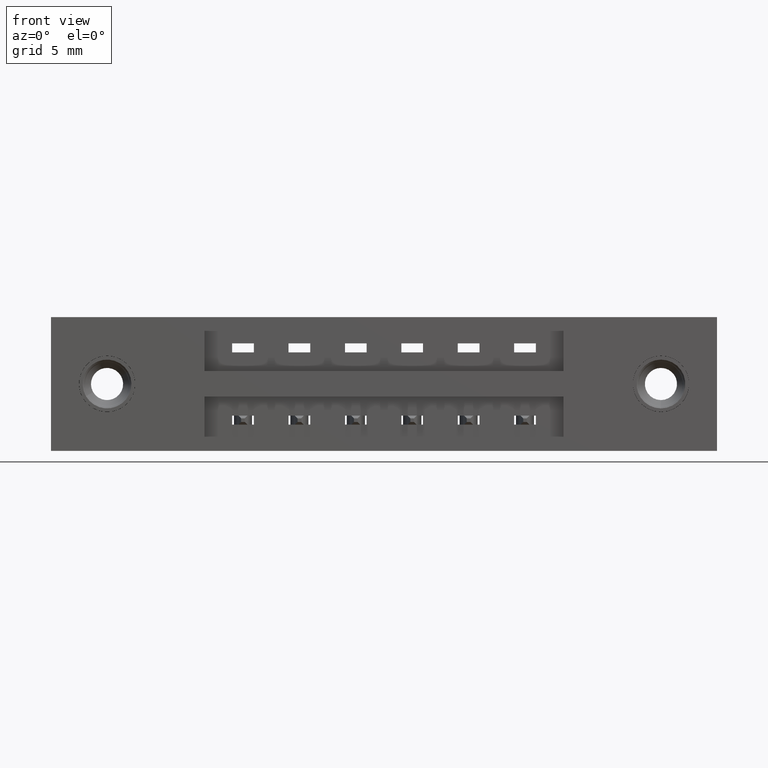
[diagram: clean part render]
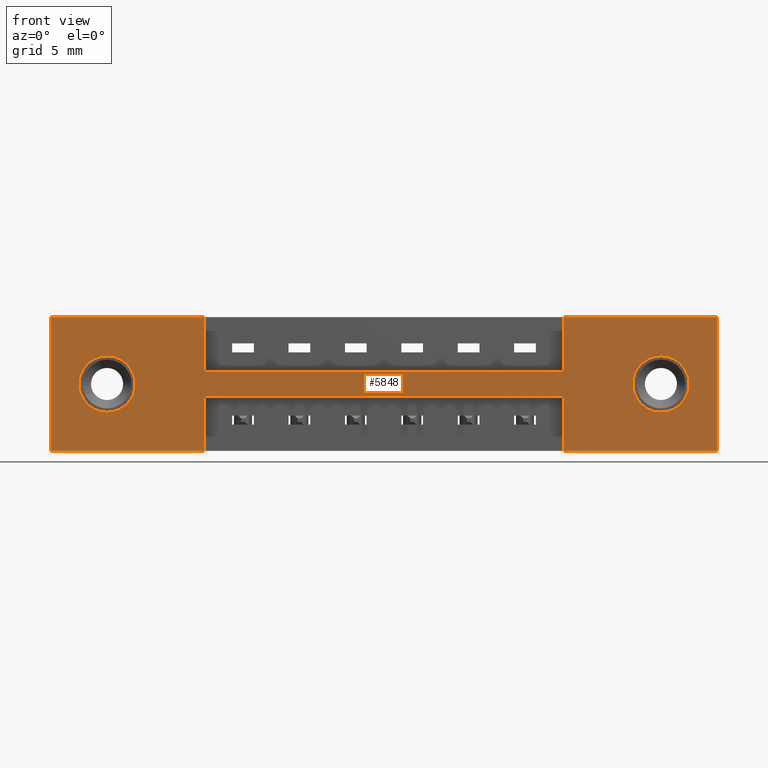
[diagram: same view with one face highlighted and labeled with its STEP entity id]
A machine part, front view. The second image highlights one B-rep face of the part: STEP entity #5848.
In plain terms, the highlighted planar face has unit normal (0, -1, 0).
Its self-contained STEP definition (entity closure, byte-faithful):
#3 = DIRECTION ( 'NONE',  ( 0.0000000000000000000, 1.000000000000000000, 0.0000000000000000000 ) ) ;
#87 = CARTESIAN_POINT ( 'NONE',  ( 1.687000000000000900, 0.0000000000000000000, -0.1850000000000000000 ) ) ;
#170 = EDGE_CURVE ( 'NONE', #6226, #3230, #2421, .T. ) ;
#321 = LINE ( 'NONE', #6213, #5037 ) ;
#338 = CARTESIAN_POINT ( 'NONE',  ( 0.1550000000000001100, 0.0000000000000000000, -0.1070000000000000100 ) ) ;
#394 = VECTOR ( 'NONE', #1293, 39.37007874015748100 ) ;
#461 = CARTESIAN_POINT ( 'NONE',  ( 1.687000000000000900, 0.0000000000000000000, -0.2630000000000001200 ) ) ;
#590 = ORIENTED_EDGE ( 'NONE', *, *, #8670, .F. ) ;
#700 = VERTEX_POINT ( 'NONE', #461 ) ;
#764 = CARTESIAN_POINT ( 'NONE',  ( 1.687000000000000900, 0.0000000000000000000, -0.1069999999999999300 ) ) ;
#988 = EDGE_LOOP ( 'NONE', ( #4795, #8601 ) ) ;
#1044 = VERTEX_POINT ( 'NONE', #1182 ) ;
#1182 = CARTESIAN_POINT ( 'NONE',  ( 0.1550000000000001100, 0.0000000000000000000, -0.2630000000000000100 ) ) ;
#1214 = VERTEX_POINT ( 'NONE', #764 ) ;
#1252 = ORIENTED_EDGE ( 'NONE', *, *, #5681, .F. ) ;
#1293 = DIRECTION ( 'NONE',  ( 0.0000000000000000000, 0.0000000000000000000, -1.000000000000000000 ) ) ;
#1341 = LINE ( 'NONE', #3321, #8206 ) ;
#1394 = CARTESIAN_POINT ( 'NONE',  ( 0.0000000000000000000, 0.0000000000000000000, -0.3700000000000001600 ) ) ;
#1453 = CARTESIAN_POINT ( 'NONE',  ( 1.842000000000000700, 0.0000000000000000000, -0.3700000000000000000 ) ) ;
#1587 = CARTESIAN_POINT ( 'NONE',  ( 0.1550000000000001100, 0.0000000000000000000, -0.1850000000000000000 ) ) ;
#1704 = DIRECTION ( 'NONE',  ( 0.0000000000000000000, 0.0000000000000000000, -1.000000000000000000 ) ) ;
#1717 = CARTESIAN_POINT ( 'NONE',  ( 0.4249999999999999900, 0.0000000000000000000, -0.2200000000000000000 ) ) ;
#1870 = VECTOR ( 'NONE', #9675, 39.37007874015748100 ) ;
#2021 = DIRECTION ( 'NONE',  ( 0.0000000000000000000, 0.0000000000000000000, -1.000000000000000000 ) ) ;
#2160 = DIRECTION ( 'NONE',  ( -1.000000000000000000, -0.0000000000000000000, -7.415439722215695600E-017 ) ) ;
#2178 = DIRECTION ( 'NONE',  ( 0.0000000000000000000, -0.0000000000000000000, -1.000000000000000000 ) ) ;
#2239 = DIRECTION ( 'NONE',  ( 0.0000000000000000000, -1.000000000000000000, 0.0000000000000000000 ) ) ;
#2299 = EDGE_CURVE ( 'NONE', #6653, #8080, #2995, .T. ) ;
#2328 = VERTEX_POINT ( 'NONE', #9215 ) ;
#2421 = LINE ( 'NONE', #5066, #6403 ) ;
#2556 = EDGE_CURVE ( 'NONE', #1044, #8755, #5361, .T. ) ;
#2657 = DIRECTION ( 'NONE',  ( 1.000000000000000000, 0.0000000000000000000, 0.0000000000000000000 ) ) ;
#2763 = DIRECTION ( 'NONE',  ( 0.0000000000000000000, 1.000000000000000000, -0.0000000000000000000 ) ) ;
#2782 = FACE_BOUND ( 'NONE', #10340, .T. ) ;
#2792 = LINE ( 'NONE', #3174, #4074 ) ;
#2875 = AXIS2_PLACEMENT_3D ( 'NONE', #6332, #3138, #8622 ) ;
#2945 = LINE ( 'NONE', #7231, #9450 ) ;
#2995 = LINE ( 'NONE', #9145, #394 ) ;
#3138 = DIRECTION ( 'NONE',  ( 0.0000000000000000000, 1.000000000000000000, 0.0000000000000000000 ) ) ;
#3174 = CARTESIAN_POINT ( 'NONE',  ( 0.0000000000000000000, 0.0000000000000000000, 0.0000000000000000000 ) ) ;
#3230 = VERTEX_POINT ( 'NONE', #7835 ) ;
#3321 = CARTESIAN_POINT ( 'NONE',  ( 0.4249999999999999900, 0.0000000000000000000, -0.3700000000000000000 ) ) ;
#3534 = CIRCLE ( 'NONE', #2875, 0.07800000000000000000 ) ;
#3665 = LINE ( 'NONE', #6579, #5506 ) ;
#3759 = VERTEX_POINT ( 'NONE', #1717 ) ;
#3776 = EDGE_CURVE ( 'NONE', #3759, #8745, #1341, .T. ) ;
#4054 = CIRCLE ( 'NONE', #4822, 0.07800000000000009700 ) ;
#4074 = VECTOR ( 'NONE', #8038, 39.37007874015748100 ) ;
#4077 = DIRECTION ( 'NONE',  ( -1.000000000000000000, -0.0000000000000000000, -7.415439722215695600E-017 ) ) ;
#4091 = LINE ( 'NONE', #8014, #10203 ) ;
#4101 = ORIENTED_EDGE ( 'NONE', *, *, #4514, .F. ) ;
#4134 = ORIENTED_EDGE ( 'NONE', *, *, #2299, .F. ) ;
#4264 = ORIENTED_EDGE ( 'NONE', *, *, #3776, .F. ) ;
#4354 = ORIENTED_EDGE ( 'NONE', *, *, #6150, .F. ) ;
#4514 = EDGE_CURVE ( 'NONE', #5397, #6653, #4091, .T. ) ;
#4789 = AXIS2_PLACEMENT_3D ( 'NONE', #1587, #3, #8013 ) ;
#4795 = ORIENTED_EDGE ( 'NONE', *, *, #9338, .T. ) ;
#4822 = AXIS2_PLACEMENT_3D ( 'NONE', #7514, #2763, #7476 ) ;
#5037 = VECTOR ( 'NONE', #6248, 39.37007874015748100 ) ;
#5066 = CARTESIAN_POINT ( 'NONE',  ( 1.417000000000000700, 0.0000000000000000000, -0.3700000000000000000 ) ) ;
#5106 = DIRECTION ( 'NONE',  ( 0.0000000000000000000, 0.0000000000000000000, 1.000000000000000000 ) ) ;
#5183 = CARTESIAN_POINT ( 'NONE',  ( 0.0000000000000000000, 0.0000000000000000000, -0.3700000000000001600 ) ) ;
#5202 = AXIS2_PLACEMENT_3D ( 'NONE', #87, #5731, #1704 ) ;
#5361 = CIRCLE ( 'NONE', #4789, 0.07800000000000000000 ) ;
#5397 = VERTEX_POINT ( 'NONE', #8447 ) ;
#5409 = PLANE ( 'NONE',  #9729 ) ;
#5416 = VECTOR ( 'NONE', #4077, 39.37007874015748100 ) ;
#5506 = VECTOR ( 'NONE', #2021, 39.37007874015748100 ) ;
#5565 = EDGE_CURVE ( 'NONE', #8152, #5397, #321, .T. ) ;
#5572 = EDGE_LOOP ( 'NONE', ( #4264, #6595, #6769, #9890, #4134, #4101, #7454, #590, #6466, #1252, #7239, #4354 ) ) ;
#5631 = CARTESIAN_POINT ( 'NONE',  ( 0.4249999999999999900, 0.0000000000000000000, -0.2200000000000000000 ) ) ;
#5662 = LINE ( 'NONE', #6088, #5416 ) ;
#5681 = EDGE_CURVE ( 'NONE', #2328, #5968, #8656, .T. ) ;
#5731 = DIRECTION ( 'NONE',  ( 0.0000000000000000000, 1.000000000000000000, -0.0000000000000000000 ) ) ;
#5848 = ADVANCED_FACE ( 'NONE', ( #8537, #2782, #8920 ), #5409, .T. ) ;
#5938 = ORIENTED_EDGE ( 'NONE', *, *, #2556, .T. ) ;
#5968 = VERTEX_POINT ( 'NONE', #7116 ) ;
#6016 = EDGE_CURVE ( 'NONE', #8355, #2328, #2792, .T. ) ;
#6088 = CARTESIAN_POINT ( 'NONE',  ( 0.0000000000000000000, 0.0000000000000000000, -0.3700000000000001600 ) ) ;
#6150 = EDGE_CURVE ( 'NONE', #8745, #8355, #5662, .T. ) ;
#6165 = ORIENTED_EDGE ( 'NONE', *, *, #9467, .T. ) ;
#6213 = CARTESIAN_POINT ( 'NONE',  ( 1.417000000000000700, 0.0000000000000000000, 0.0000000000000000000 ) ) ;
#6226 = VERTEX_POINT ( 'NONE', #10343 ) ;
#6233 = CIRCLE ( 'NONE', #5202, 0.07800000000000009700 ) ;
#6248 = DIRECTION ( 'NONE',  ( -0.0000000000000000000, -0.0000000000000000000, 1.000000000000000000 ) ) ;
#6332 = CARTESIAN_POINT ( 'NONE',  ( 0.1550000000000001100, 0.0000000000000000000, -0.1850000000000000000 ) ) ;
#6386 = CARTESIAN_POINT ( 'NONE',  ( 1.842000000000000700, 0.0000000000000000000, 0.0000000000000000000 ) ) ;
#6403 = VECTOR ( 'NONE', #5106, 39.37007874015748100 ) ;
#6466 = ORIENTED_EDGE ( 'NONE', *, *, #8716, .F. ) ;
#6579 = CARTESIAN_POINT ( 'NONE',  ( 0.4249999999999999300, 0.0000000000000000000, 0.0000000000000000000 ) ) ;
#6595 = ORIENTED_EDGE ( 'NONE', *, *, #8507, .F. ) ;
#6653 = VERTEX_POINT ( 'NONE', #6386 ) ;
#6689 = EDGE_CURVE ( 'NONE', #700, #1214, #4054, .T. ) ;
#6769 = ORIENTED_EDGE ( 'NONE', *, *, #170, .F. ) ;
#6779 = CARTESIAN_POINT ( 'NONE',  ( 0.4249999999999999900, 0.0000000000000000000, -0.3700000000000000000 ) ) ;
#6940 = CARTESIAN_POINT ( 'NONE',  ( 0.0000000000000000000, 0.0000000000000000000, -0.3700000000000001600 ) ) ;
#7116 = CARTESIAN_POINT ( 'NONE',  ( 0.4249999999999999300, 0.0000000000000000000, 0.0000000000000000000 ) ) ;
#7231 = CARTESIAN_POINT ( 'NONE',  ( 0.4249999999999999300, 0.0000000000000000000, -0.1499999999999999900 ) ) ;
#7239 = ORIENTED_EDGE ( 'NONE', *, *, #6016, .F. ) ;
#7379 = CARTESIAN_POINT ( 'NONE',  ( 1.417000000000000700, 0.0000000000000000000, -0.1499999999999999900 ) ) ;
#7454 = ORIENTED_EDGE ( 'NONE', *, *, #5565, .F. ) ;
#7476 = DIRECTION ( 'NONE',  ( 0.0000000000000000000, 0.0000000000000000000, -1.000000000000000000 ) ) ;
#7514 = CARTESIAN_POINT ( 'NONE',  ( 1.687000000000000900, 0.0000000000000000000, -0.1850000000000000000 ) ) ;
#7835 = CARTESIAN_POINT ( 'NONE',  ( 1.417000000000000700, 0.0000000000000000000, -0.2200000000000000000 ) ) ;
#7859 = VECTOR ( 'NONE', #2160, 39.37007874015748100 ) ;
#7982 = LINE ( 'NONE', #1394, #7859 ) ;
#8013 = DIRECTION ( 'NONE',  ( 0.0000000000000000000, 0.0000000000000000000, 1.000000000000000000 ) ) ;
#8014 = CARTESIAN_POINT ( 'NONE',  ( 0.0000000000000000000, 0.0000000000000000000, 0.0000000000000000000 ) ) ;
#8038 = DIRECTION ( 'NONE',  ( -0.0000000000000000000, -0.0000000000000000000, 1.000000000000000000 ) ) ;
#8041 = DIRECTION ( 'NONE',  ( 1.000000000000000000, 0.0000000000000000000, 0.0000000000000000000 ) ) ;
#8044 = VECTOR ( 'NONE', #2657, 39.37007874015748100 ) ;
#8080 = VERTEX_POINT ( 'NONE', #1453 ) ;
#8152 = VERTEX_POINT ( 'NONE', #7379 ) ;
#8206 = VECTOR ( 'NONE', #9730, 39.37007874015748100 ) ;
#8355 = VERTEX_POINT ( 'NONE', #5183 ) ;
#8372 = EDGE_CURVE ( 'NONE', #8080, #6226, #7982, .T. ) ;
#8447 = CARTESIAN_POINT ( 'NONE',  ( 1.417000000000000700, 0.0000000000000000000, 0.0000000000000000000 ) ) ;
#8464 = CARTESIAN_POINT ( 'NONE',  ( 0.4249999999999999300, 0.0000000000000000000, -0.1499999999999999900 ) ) ;
#8507 = EDGE_CURVE ( 'NONE', #3230, #3759, #9001, .T. ) ;
#8537 = FACE_BOUND ( 'NONE', #988, .T. ) ;
#8601 = ORIENTED_EDGE ( 'NONE', *, *, #6689, .T. ) ;
#8622 = DIRECTION ( 'NONE',  ( 0.0000000000000000000, 0.0000000000000000000, 1.000000000000000000 ) ) ;
#8656 = LINE ( 'NONE', #9030, #8044 ) ;
#8670 = EDGE_CURVE ( 'NONE', #9060, #8152, #2945, .T. ) ;
#8716 = EDGE_CURVE ( 'NONE', #5968, #9060, #3665, .T. ) ;
#8745 = VERTEX_POINT ( 'NONE', #6779 ) ;
#8755 = VERTEX_POINT ( 'NONE', #338 ) ;
#8859 = DIRECTION ( 'NONE',  ( 1.000000000000000000, 0.0000000000000000000, 0.0000000000000000000 ) ) ;
#8920 = FACE_OUTER_BOUND ( 'NONE', #5572, .T. ) ;
#9001 = LINE ( 'NONE', #5631, #1870 ) ;
#9030 = CARTESIAN_POINT ( 'NONE',  ( 0.0000000000000000000, 0.0000000000000000000, 0.0000000000000000000 ) ) ;
#9060 = VERTEX_POINT ( 'NONE', #8464 ) ;
#9145 = CARTESIAN_POINT ( 'NONE',  ( 1.842000000000000700, 0.0000000000000000000, 0.0000000000000000000 ) ) ;
#9215 = CARTESIAN_POINT ( 'NONE',  ( 0.0000000000000000000, 0.0000000000000000000, 0.0000000000000000000 ) ) ;
#9338 = EDGE_CURVE ( 'NONE', #1214, #700, #6233, .T. ) ;
#9450 = VECTOR ( 'NONE', #8041, 39.37007874015748100 ) ;
#9467 = EDGE_CURVE ( 'NONE', #8755, #1044, #3534, .T. ) ;
#9675 = DIRECTION ( 'NONE',  ( -1.000000000000000000, -0.0000000000000000000, -0.0000000000000000000 ) ) ;
#9729 = AXIS2_PLACEMENT_3D ( 'NONE', #6940, #2239, #2178 ) ;
#9730 = DIRECTION ( 'NONE',  ( -0.0000000000000000000, -0.0000000000000000000, -1.000000000000000000 ) ) ;
#9890 = ORIENTED_EDGE ( 'NONE', *, *, #8372, .F. ) ;
#10203 = VECTOR ( 'NONE', #8859, 39.37007874015748100 ) ;
#10340 = EDGE_LOOP ( 'NONE', ( #6165, #5938 ) ) ;
#10343 = CARTESIAN_POINT ( 'NONE',  ( 1.417000000000000700, 0.0000000000000000000, -0.3700000000000000000 ) ) ;